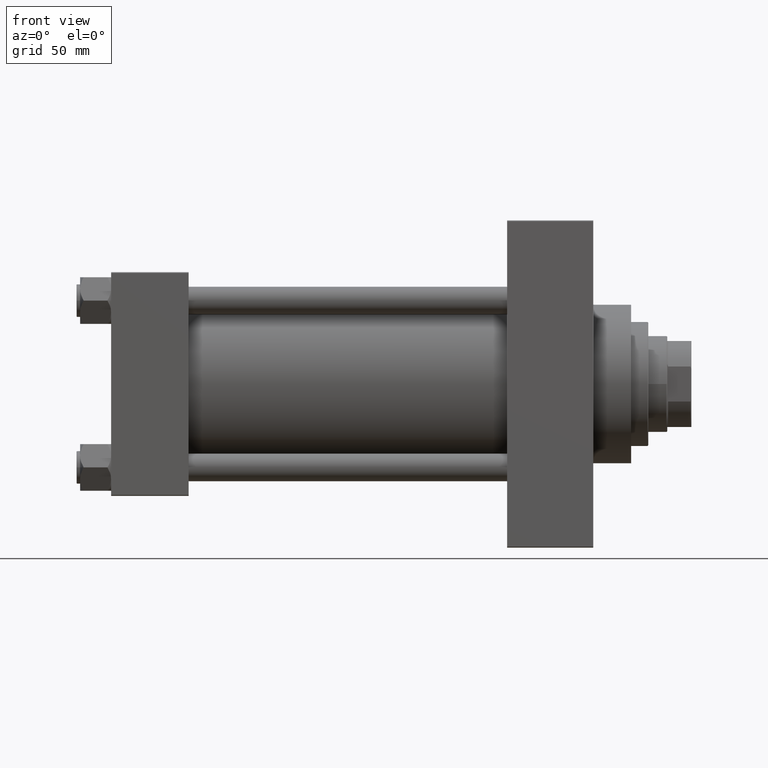
[diagram: clean part render]
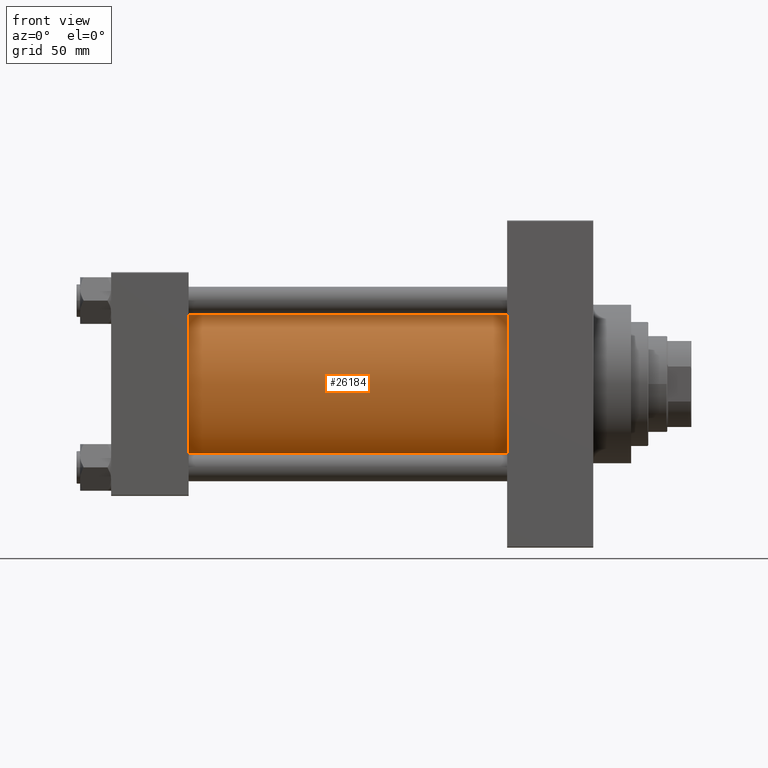
[diagram: same view with one face highlighted and labeled with its STEP entity id]
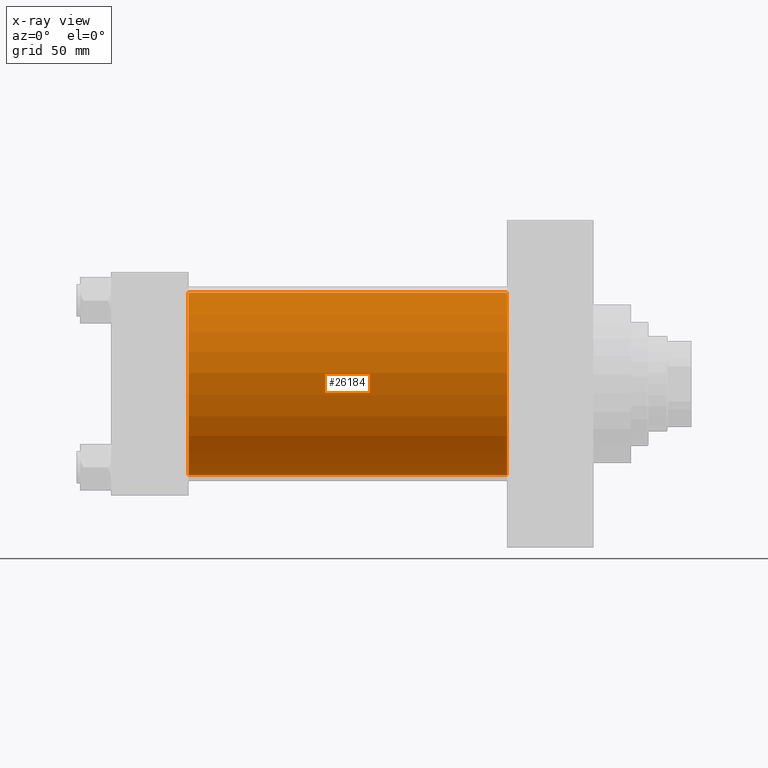
[diagram: x-ray of the same camera — body ghosted, the highlighted face saturated]
A machine part, front view. The second image highlights one B-rep face of the part: STEP entity #26184.
The next image is the same camera in x-ray: the body ghosted, the highlighted face saturated — about 2% of this face is hidden behind the body in this view.
In plain terms, the highlighted cylindrical surface (partial cylindrical patch) has radius 53 mm, axis along (-1, -0, -0).
Its self-contained STEP definition (entity closure, byte-faithful):
#652 = CIRCLE ( 'NONE', #14515, 53.00000000000000711 ) ;
#1091 = LINE ( 'NONE', #45989, #18473 ) ;
#1391 = CARTESIAN_POINT ( 'NONE',  ( 44.99999999999998579, -2.602085213965210642E-15, 0.000000000000000000 ) ) ;
#2504 = CARTESIAN_POINT ( 'NONE',  ( 229.9999999999999716, -2.602085213965210642E-15, 0.000000000000000000 ) ) ;
#3116 = EDGE_CURVE ( 'NONE', #5532, #35063, #31956, .T. ) ;
#5532 = VERTEX_POINT ( 'NONE', #20306 ) ;
#6359 = DIRECTION ( 'NONE',  ( -1.000000000000000000, -0.000000000000000000, -0.000000000000000000 ) ) ;
#7186 = DIRECTION ( 'NONE',  ( 1.000000000000000000, 0.000000000000000000, 0.000000000000000000 ) ) ;
#8144 = ORIENTED_EDGE ( 'NONE', *, *, #11378, .F. ) ;
#9705 = ORIENTED_EDGE ( 'NONE', *, *, #3116, .T. ) ;
#10642 = CARTESIAN_POINT ( 'NONE',  ( 229.9999999999999716, 3.888542821515762466E-15, -53.00000000000000711 ) ) ;
#11378 = EDGE_CURVE ( 'NONE', #46666, #29640, #1091, .T. ) ;
#13179 = CIRCLE ( 'NONE', #39355, 53.00000000000000711 ) ;
#13974 = DIRECTION ( 'NONE',  ( 0.000000000000000000, 0.000000000000000000, -1.000000000000000000 ) ) ;
#14205 = CARTESIAN_POINT ( 'NONE',  ( 229.9999999999999716, -2.602085213965210642E-15, 0.000000000000000000 ) ) ;
#14515 = AXIS2_PLACEMENT_3D ( 'NONE', #14205, #7186, #13974 ) ;
#14750 = CARTESIAN_POINT ( 'NONE',  ( 44.99999999999998579, 3.888542821515762466E-15, -53.00000000000000711 ) ) ;
#16362 = DIRECTION ( 'NONE',  ( 1.000000000000000000, -0.000000000000000000, 0.000000000000000000 ) ) ;
#17236 = DIRECTION ( 'NONE',  ( 0.000000000000000000, 0.000000000000000000, 1.000000000000000000 ) ) ;
#18473 = VECTOR ( 'NONE', #23556, 1000.000000000000000 ) ;
#20306 = CARTESIAN_POINT ( 'NONE',  ( 229.9999999999999716, -2.602085213965210642E-15, 53.00000000000000711 ) ) ;
#20378 = FACE_OUTER_BOUND ( 'NONE', #25694, .T. ) ;
#20507 = CARTESIAN_POINT ( 'NONE',  ( 44.99999999999998579, -2.602085213965210642E-15, 53.00000000000000711 ) ) ;
#22486 = EDGE_CURVE ( 'NONE', #5532, #46666, #652, .T. ) ;
#22889 = ORIENTED_EDGE ( 'NONE', *, *, #28154, .T. ) ;
#23556 = DIRECTION ( 'NONE',  ( -1.000000000000000000, -0.000000000000000000, -0.000000000000000000 ) ) ;
#23610 = DIRECTION ( 'NONE',  ( 0.000000000000000000, 0.000000000000000000, 1.000000000000000000 ) ) ;
#24005 = CYLINDRICAL_SURFACE ( 'NONE', #30050, 53.00000000000000711 ) ;
#25694 = EDGE_LOOP ( 'NONE', ( #8144, #30576, #9705, #22889 ) ) ;
#26184 = ADVANCED_FACE ( 'NONE', ( #20378 ), #24005, .T. ) ;
#28154 = EDGE_CURVE ( 'NONE', #35063, #29640, #13179, .T. ) ;
#28342 = VECTOR ( 'NONE', #6359, 1000.000000000000000 ) ;
#29640 = VERTEX_POINT ( 'NONE', #14750 ) ;
#30050 = AXIS2_PLACEMENT_3D ( 'NONE', #2504, #46198, #17236 ) ;
#30576 = ORIENTED_EDGE ( 'NONE', *, *, #22486, .F. ) ;
#31956 = LINE ( 'NONE', #39432, #28342 ) ;
#35063 = VERTEX_POINT ( 'NONE', #20507 ) ;
#39355 = AXIS2_PLACEMENT_3D ( 'NONE', #1391, #16362, #23610 ) ;
#39432 = CARTESIAN_POINT ( 'NONE',  ( 229.9999999999999716, -2.602085213965210642E-15, 53.00000000000000711 ) ) ;
#45989 = CARTESIAN_POINT ( 'NONE',  ( 229.9999999999999716, 3.888542821515762466E-15, -53.00000000000000711 ) ) ;
#46198 = DIRECTION ( 'NONE',  ( -1.000000000000000000, -0.000000000000000000, -0.000000000000000000 ) ) ;
#46666 = VERTEX_POINT ( 'NONE', #10642 ) ;